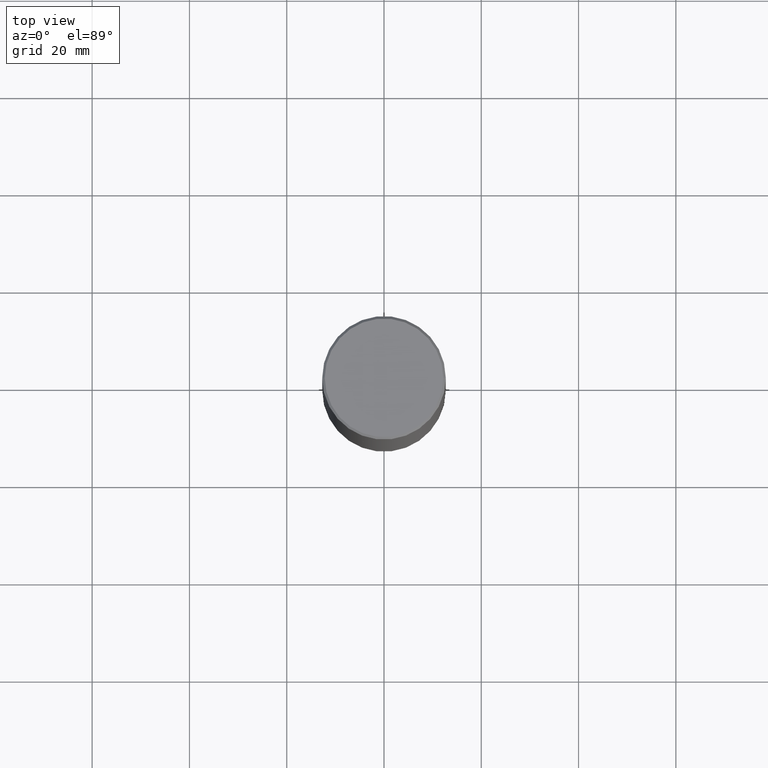
[diagram: clean part render]
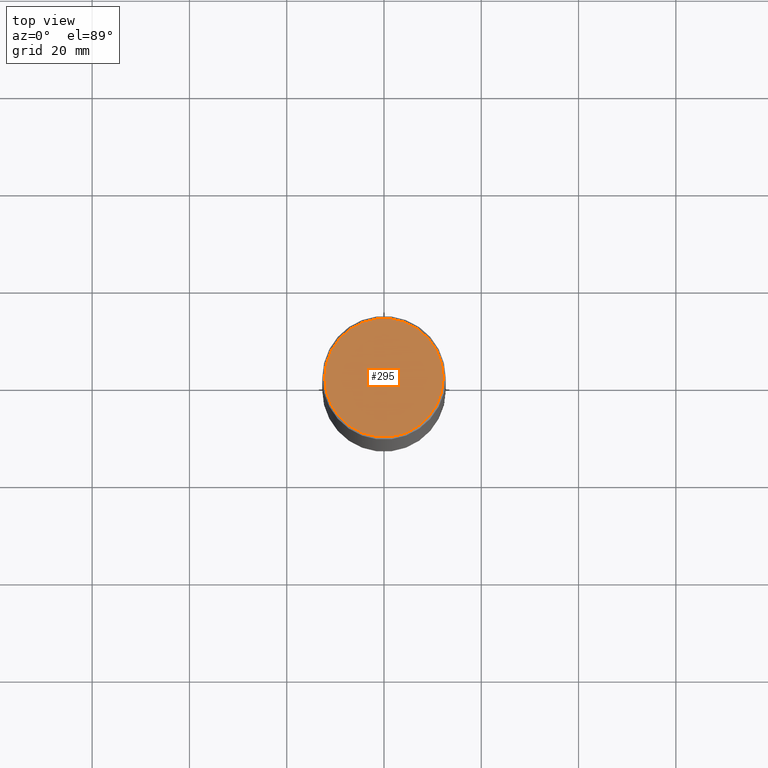
[diagram: same view with one face highlighted and labeled with its STEP entity id]
A machine part, top view. The second image highlights one B-rep face of the part: STEP entity #295.
In plain terms, the highlighted planar face has unit normal (0, -0, -1).
Its self-contained STEP definition (entity closure, byte-faithful):
#1 = VERTEX_POINT ( 'NONE', #17 ) ;
#11 = DIRECTION ( 'NONE',  ( -2.445468806185136597E-29, 3.491481338843145583E-15, 1.000000000000000000 ) ) ;
#17 = CARTESIAN_POINT ( 'NONE',  ( 0.4800000000000000933, -3.396558832296482493E-15, -1.067128122524866809E-16 ) ) ;
#39 = EDGE_LOOP ( 'NONE', ( #339, #73 ) ) ;
#45 = CIRCLE ( 'NONE', #170, 0.4800000000000000933 ) ;
#52 = PLANE ( 'NONE',  #111 ) ;
#65 = CARTESIAN_POINT ( 'NONE',  ( 2.609628535838049452E-45, -3.725857925951117973E-31, -1.067128122525102851E-16 ) ) ;
#73 = ORIENTED_EDGE ( 'NONE', *, *, #154, .T. ) ;
#95 = DIRECTION ( 'NONE',  ( 1.000000000000000000, -6.982962677686266711E-15, 4.874852205035275907E-29 ) ) ;
#111 = AXIS2_PLACEMENT_3D ( 'NONE', #390, #254, #192 ) ;
#139 = AXIS2_PLACEMENT_3D ( 'NONE', #310, #11, #281 ) ;
#154 = EDGE_CURVE ( 'NONE', #1, #331, #45, .T. ) ;
#170 = AXIS2_PLACEMENT_3D ( 'NONE', #65, #338, #95 ) ;
#192 = DIRECTION ( 'NONE',  ( -1.000000000000000000, 6.982962677686265922E-15, -4.876176775795935793E-29 ) ) ;
#233 = EDGE_CURVE ( 'NONE', #331, #1, #382, .T. ) ;
#254 = DIRECTION ( 'NONE',  ( 2.438088387897960049E-29, -3.491481338843145188E-15, -1.000000000000000000 ) ) ;
#281 = DIRECTION ( 'NONE',  ( 1.000000000000000000, -6.982962677686266711E-15, 4.874852205035275907E-29 ) ) ;
#284 = FACE_OUTER_BOUND ( 'NONE', #39, .T. ) ;
#295 = ADVANCED_FACE ( 'NONE', ( #284 ), #52, .F. ) ;
#310 = CARTESIAN_POINT ( 'NONE',  ( 2.609628535838049452E-45, -3.725857925951117973E-31, -1.067128122525102851E-16 ) ) ;
#327 = CARTESIAN_POINT ( 'NONE',  ( -0.4800000000000000933, 3.386736898677839197E-15, -1.067128122525338523E-16 ) ) ;
#331 = VERTEX_POINT ( 'NONE', #327 ) ;
#338 = DIRECTION ( 'NONE',  ( -2.445468806185136597E-29, 3.491481338843145583E-15, 1.000000000000000000 ) ) ;
#339 = ORIENTED_EDGE ( 'NONE', *, *, #233, .T. ) ;
#382 = CIRCLE ( 'NONE', #139, 0.4800000000000000933 ) ;
#390 = CARTESIAN_POINT ( 'NONE',  ( 3.351822085289408337E-15, 0.4800000000000000933, -1.729267448770965221E-15 ) ) ;